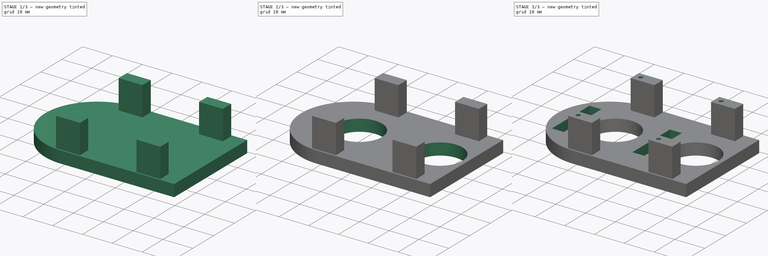
[diagram: build sequence overview — one tinted view per stage of 3, left to right]
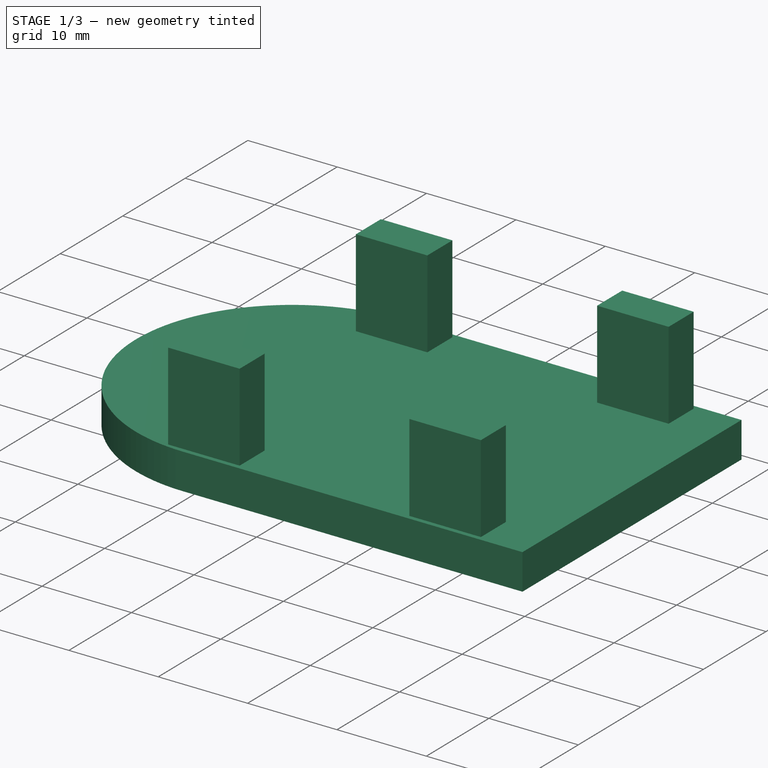
[diagram: stage 1 of 3 — iso view after this stage's code; geometry added in this stage tinted green]
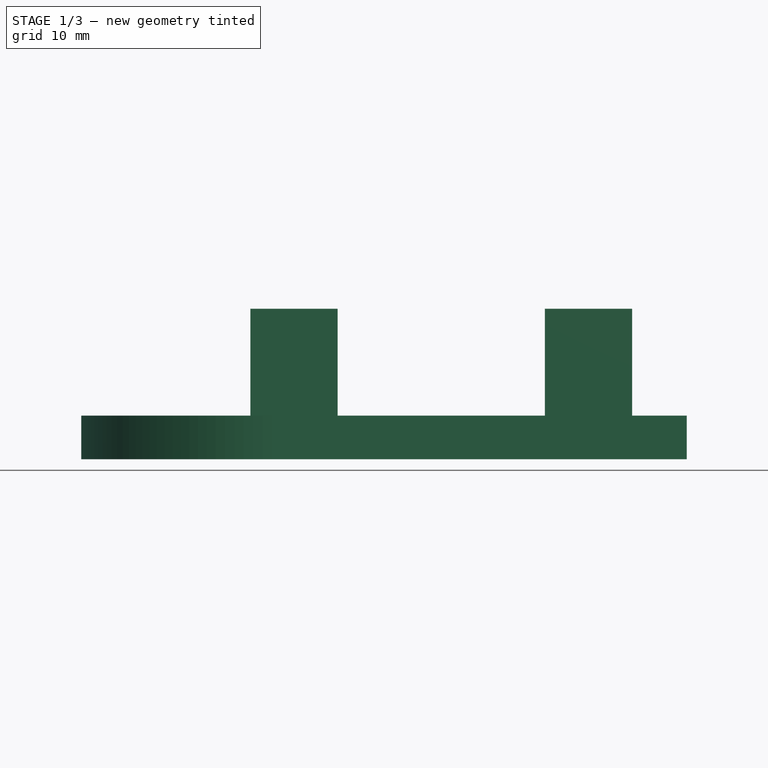
[diagram: stage 1 of 3 — front view after this stage's code; geometry added in this stage tinted green]
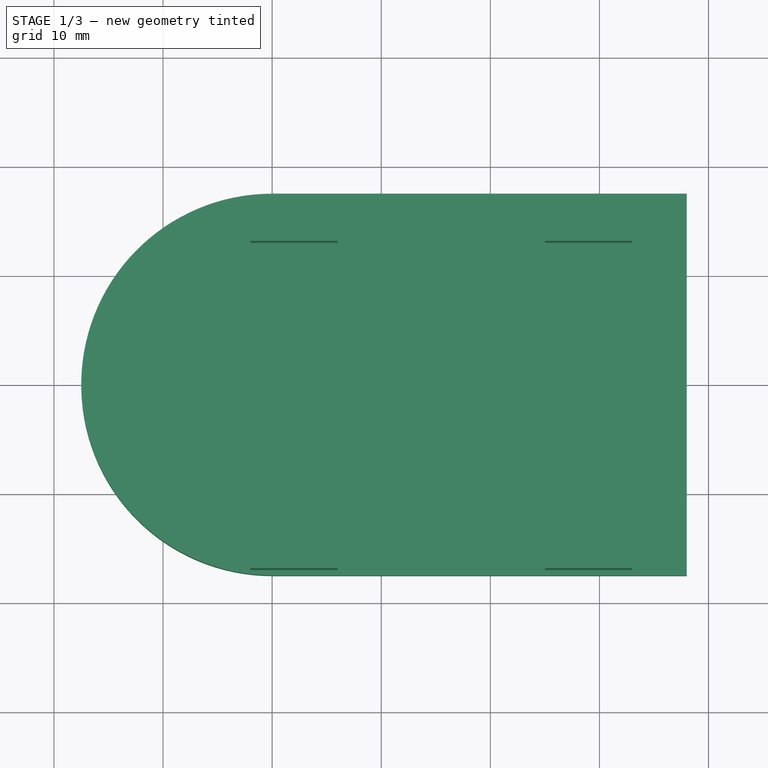
[diagram: stage 1 of 3 — top view after this stage's code; geometry added in this stage tinted green]
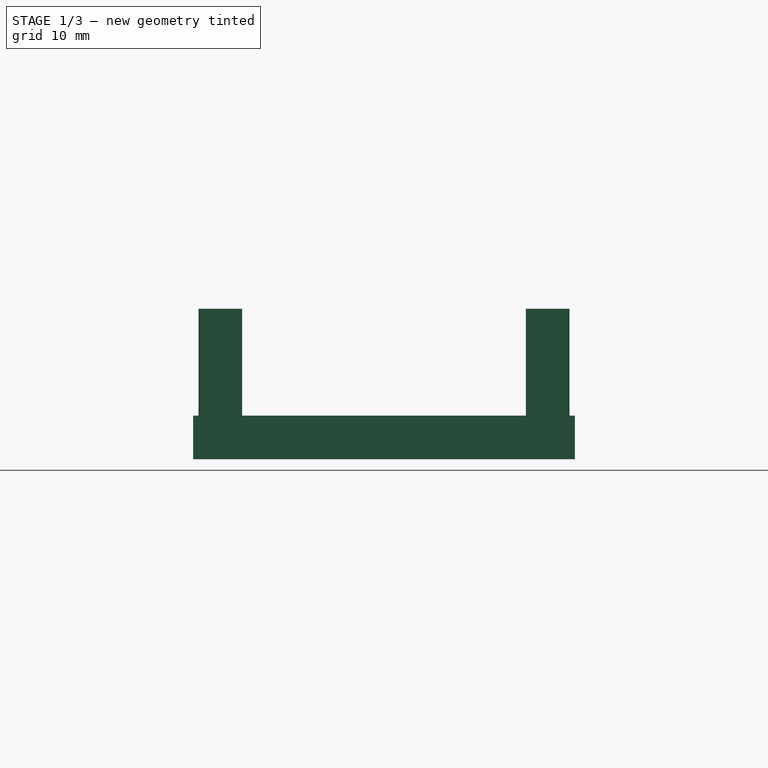
[diagram: stage 1 of 3 — right view after this stage's code; geometry added in this stage tinted green]
FCSTD DOCUMENT  (FreeCAD 0.15R3878 (Git))
Label: ircamera-casing
License: CC-BY 3.0
LicenseURL: http://creativecommons.org/licenses/by/3.0/
objects: Sketcher::SketchObject×5, PartDesign::Pocket×3, PartDesign::Pad×2, App::MeasureDistance×2
note: 15 computed .brp shape members not serialized (recipe doc carries the construction recipe); baked Part::Feature solids carry a one-line shape summary decoded from their .brp

FEATURE [Sketcher::SketchObject] Sketch  label="base"
  sketch-geometry (5):
    g0: ArcOfCircle CenterX=0 CenterY=0 CenterZ=0 NormalX=0 NormalY=0 NormalZ=1 Radius=17.5 StartAngle=1.5708 EndAngle=4.71239
    g1: LineSegment StartX=3.32267e-05 StartY=-17.5 StartZ=0 EndX=38 EndY=-17.5 EndZ=0
    g2: LineSegment StartX=-2.68055e-06 StartY=17.5 StartZ=0 EndX=38 EndY=17.5 EndZ=0
    g3: LineSegment StartX=38 StartY=17.5 StartZ=0 EndX=38 EndY=-17.5 EndZ=0
    g4: LineSegment [constr] StartX=0 StartY=0 StartZ=0 EndX=-17.5 EndY=0 EndZ=0
  constraints (15):
    c: Tangent(g0,g1)
    c: Tangent(g0,g2)
    c: Coincident(g0,g2)
    c: Coincident(g0,g1)
    c: Horizontal(g1)
    c: Coincident(g0,g-1)
    c: DistanceY(g0,g0) = 35
    c: Vertical(g3)
    c: DistanceX(g-1,g1) = 38
    c: PointOnObject(g4,g0)
    c: Horizontal(g4)
    c: Coincident(g4,g-1)
    c: DistanceX(g4) = -17.5
    c: Coincident(g3,g1)
    c: Coincident(g3,g2)
FEATURE [PartDesign::Pad] Pad
  Length = 4
  Length2 = 100
  Sketch = -> Sketch
  Type = 0
FEATURE [Sketcher::SketchObject] Sketch001  label="mount-offsets"
  Placement = pos=(0,0,4) rot=(0,0,1;0rad)
  Support = -> Pad [Face6]
  sketch-geometry (19):
    g0: LineSegment StartX=-2 StartY=17 StartZ=0 EndX=-2 EndY=13 EndZ=0
    g1: LineSegment StartX=-2 StartY=13 StartZ=0 EndX=6 EndY=13 EndZ=0
    g2: LineSegment StartX=6 StartY=13 StartZ=0 EndX=6 EndY=17 EndZ=0
    g3: LineSegment StartX=-2 StartY=-13 StartZ=0 EndX=6 EndY=-13 EndZ=0
    g4: LineSegment StartX=6 StartY=-13 StartZ=0 EndX=6 EndY=-17 EndZ=0
    g5: LineSegment StartX=-2 StartY=-17 StartZ=0 EndX=-2 EndY=-13 EndZ=0
    g6: LineSegment StartX=25 StartY=17 StartZ=0 EndX=33 EndY=17 EndZ=0
    g7: LineSegment StartX=33 StartY=17 StartZ=0 EndX=33 EndY=13 EndZ=0
    g8: LineSegment StartX=33 StartY=13 StartZ=0 EndX=25 EndY=13 EndZ=0
    g9: LineSegment StartX=25 StartY=13 StartZ=0 EndX=25 EndY=17 EndZ=0
    g10: LineSegment StartX=25 StartY=-13 StartZ=0 EndX=33 EndY=-13 EndZ=0
    g11: LineSegment StartX=33 StartY=-13 StartZ=0 EndX=33 EndY=-17 EndZ=0
    g12: LineSegment StartX=25 StartY=-17 StartZ=0 EndX=25 EndY=-13 EndZ=0
    g13: LineSegment StartX=-2 StartY=17 StartZ=0 EndX=6 EndY=17 EndZ=0
    g14: LineSegment [constr] StartX=-2 StartY=17 StartZ=0 EndX=25 EndY=17 EndZ=0
    g15: LineSegment StartX=33 StartY=-17 StartZ=0 EndX=25 EndY=-17 EndZ=0
    g16: LineSegment StartX=6 StartY=-17 StartZ=0 EndX=-2 EndY=-17 EndZ=0
    g17: LineSegment [constr] StartX=25 StartY=-17 StartZ=0 EndX=-2 EndY=-17 EndZ=0
    g18: LineSegment [constr] StartX=33 StartY=-17 StartZ=0 EndX=33 EndY=13 EndZ=0
  constraints (54):
    c: Coincident(g0,g1)
    c: Coincident(g1,g2)
    c: Horizontal(g1)
    c: Vertical(g0)
    c: Vertical(g2)
    c: Coincident(g3,g4)
    c: Coincident(g5,g3)
    c: Horizontal(g3)
    c: Vertical(g4)
    c: Vertical(g5)
    c: Coincident(g6,g7)
    c: Coincident(g7,g8)
    c: Coincident(g8,g9)
    c: Coincident(g9,g6)
    c: Horizontal(g6)
    c: Horizontal(g8)
    c: Vertical(g7)
    c: Vertical(g9)
    c: Coincident(g10,g11)
    c: Coincident(g12,g10)
    c: Horizontal(g10)
    c: Vertical(g11)
    c: Vertical(g12)
    c: Coincident(g13,g0)
    c: Coincident(g13,g2)
    c: Horizontal(g13)
    c: Coincident(g14,g0)
    c: Coincident(g14,g6)
    c: Horizontal(g14)
    c: Coincident(g15,g11)
    c: Coincident(g15,g12)
    c: Horizontal(g15)
    c: Coincident(g16,g4)
    c: Coincident(g16,g5)
    c: Horizontal(g16)
    c: Coincident(g17,g5)
    c: Horizontal(g17)
    c: Coincident(g17,g12)
    c: Equal(g0,g5)
    c: Equal(g5,g9)
    c: Equal(g9,g12)
    c: DistanceY(g5) = 4
    c: DistanceX(g17) = -27
    c: Coincident(g18,g11)
    c: Coincident(g18,g7)
    c: Vertical(g18)
    c: DistanceY(g18) = 30
    c: Equal(g1,g3)
    c: Equal(g3,g10)
    c: Equal(g10,g8)
    c: Equal(g14,g17)
    c: DistanceX(g3) = 8
    c: DistanceX(g-1,g0) = -2
    c: DistanceY(g-1,g0) = 13
FEATURE [PartDesign::Pad] Pad001
  Length = 9.8
  Length2 = 100
  Sketch = -> Sketch001
  Type = 0
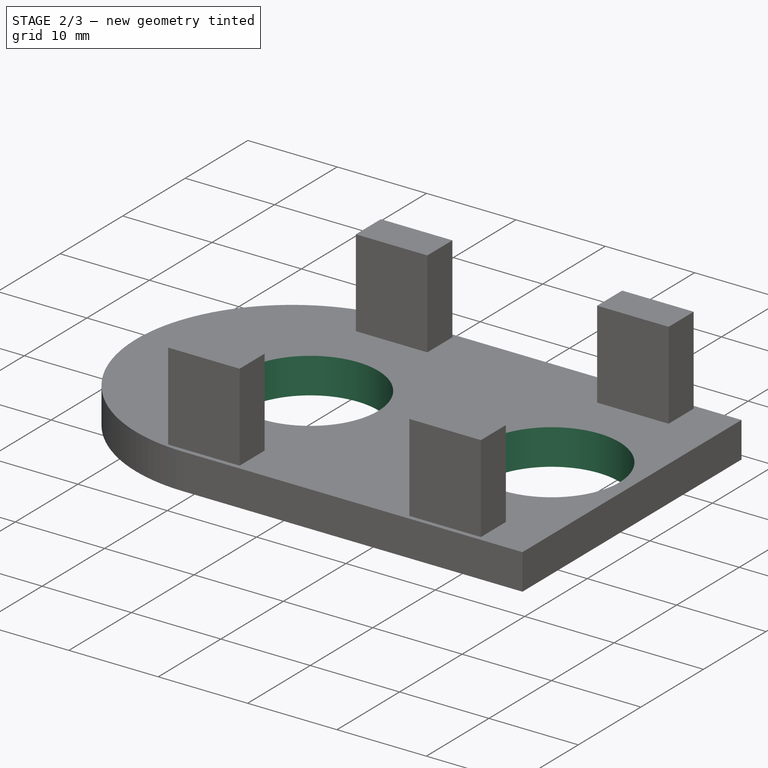
[diagram: stage 2 of 3 — iso view after this stage's code; geometry added in this stage tinted green]
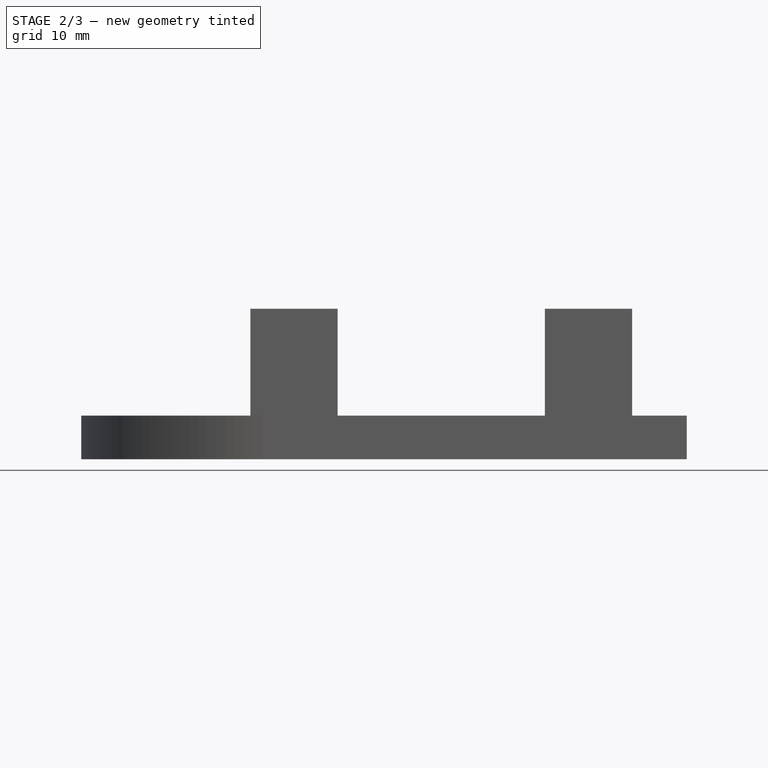
[diagram: stage 2 of 3 — front view after this stage's code; geometry added in this stage tinted green]
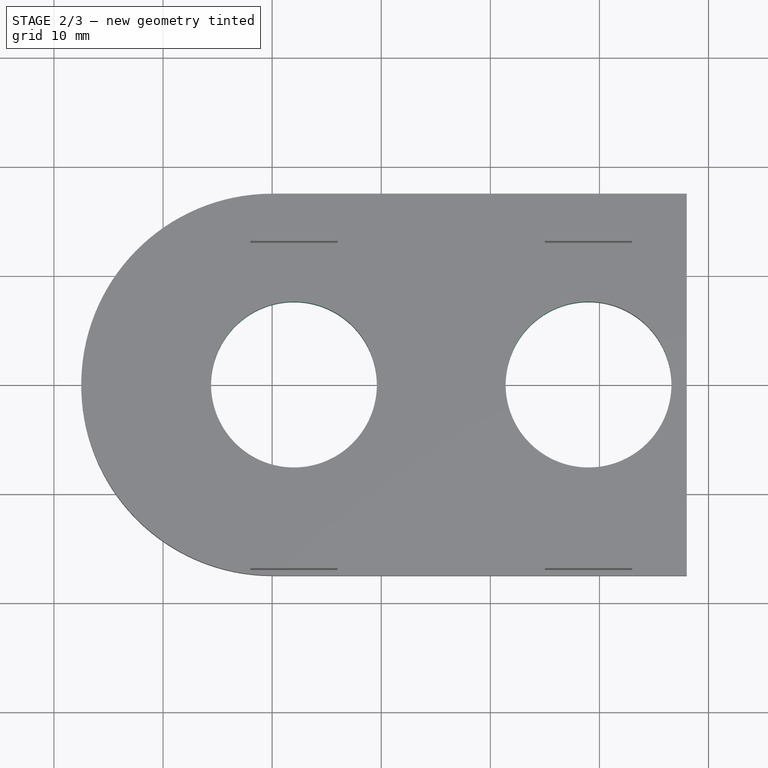
[diagram: stage 2 of 3 — top view after this stage's code; geometry added in this stage tinted green]
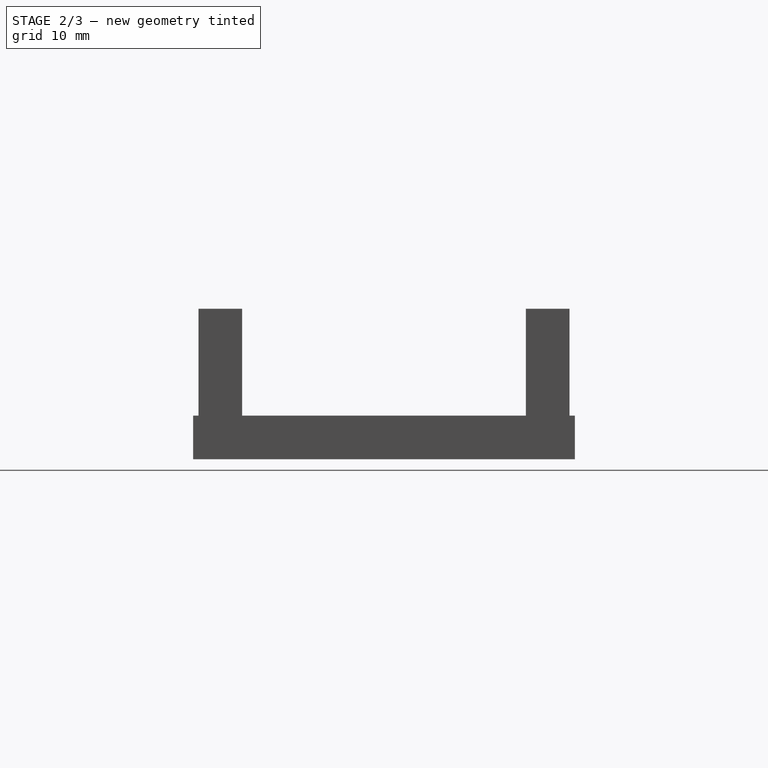
[diagram: stage 2 of 3 — right view after this stage's code; geometry added in this stage tinted green]
FEATURE [Sketcher::SketchObject] Sketch002  label="holes-lensthreads"
  Placement = pos=(0,0,4) rot=(0,0,1;0rad)
  Support = -> Pad001 [Face5]
  sketch-geometry (2):
    g0: Circle CenterX=2 CenterY=0 CenterZ=0 NormalX=0 NormalY=0 NormalZ=1 Radius=7.6
    g1: Circle CenterX=29 CenterY=0 CenterZ=0 NormalX=0 NormalY=0 NormalZ=1 Radius=7.6
  constraints (6):
    c: PointOnObject(g0,g-1)
    c: PointOnObject(g1,g-1)
    c: Radius(g1) = 7.6
    c: Equal(g1,g0)
    c: DistanceX(g0,g1) = 27
    c: DistanceX(g-1,g0) = 2
FEATURE [PartDesign::Pocket] Pocket
  Length = 5
  Sketch = -> Sketch002
  Type = 0
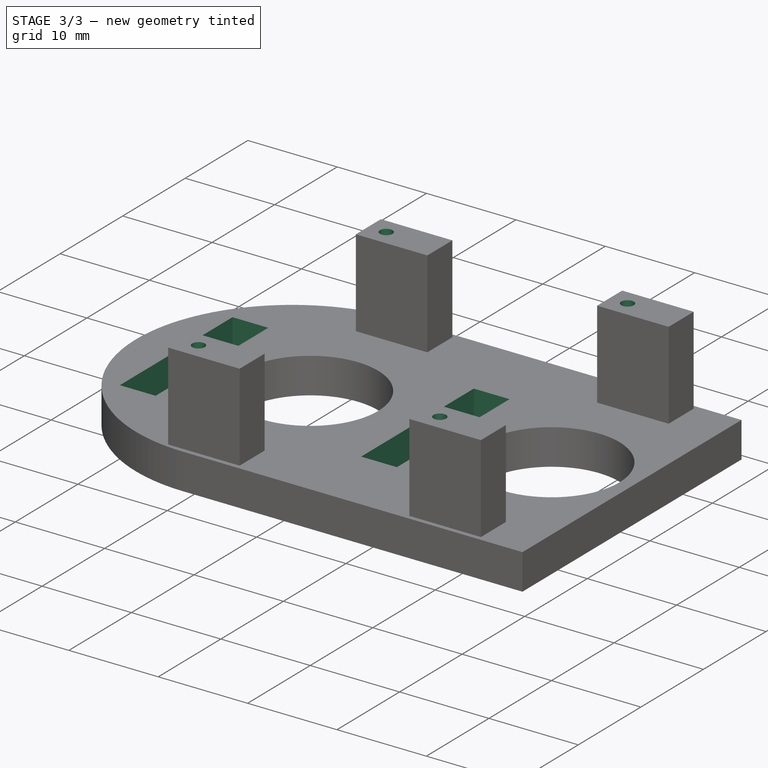
[diagram: stage 3 of 3 — iso view after this stage's code; geometry added in this stage tinted green]
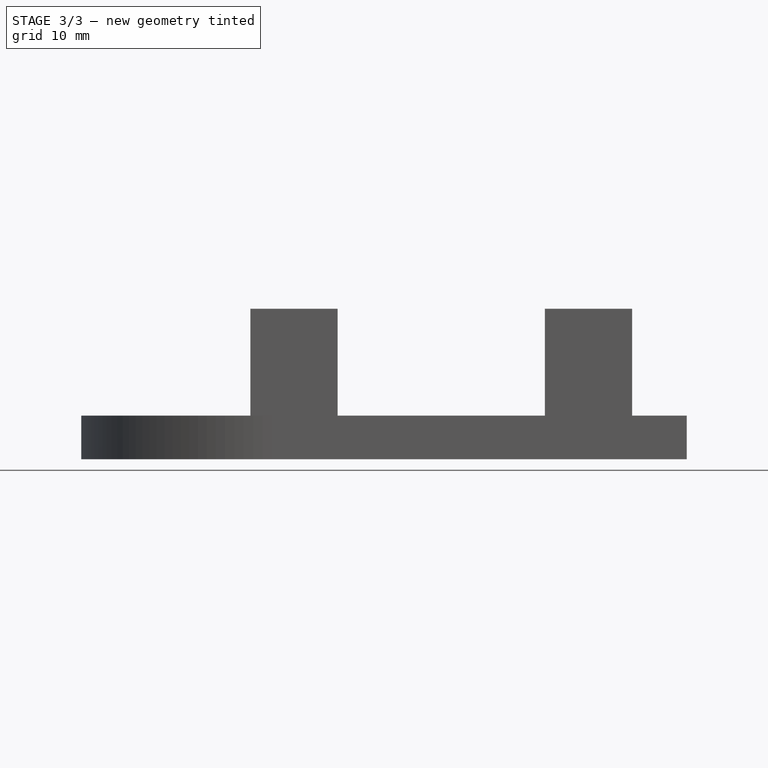
[diagram: stage 3 of 3 — front view after this stage's code; geometry added in this stage tinted green]
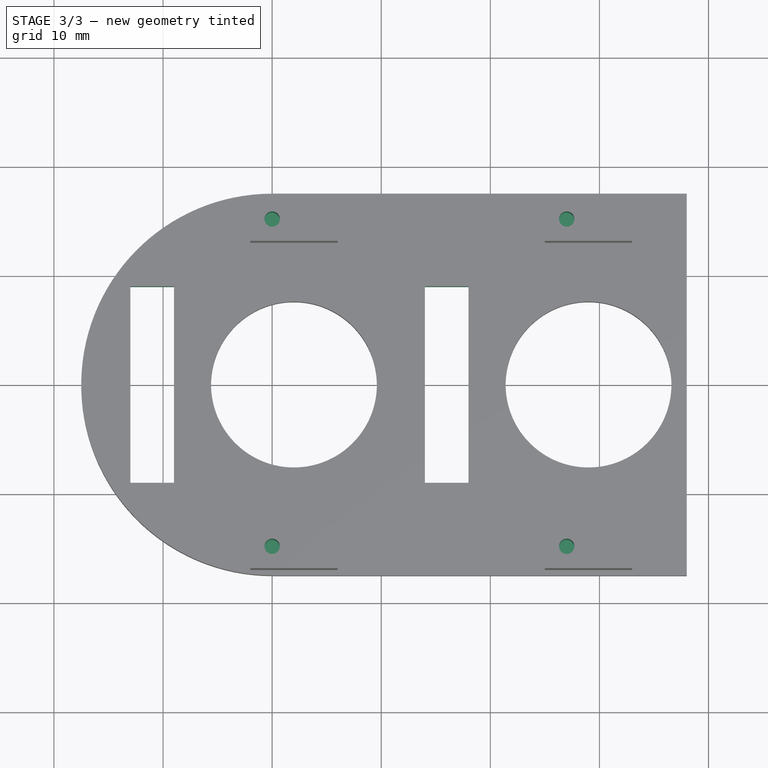
[diagram: stage 3 of 3 — top view after this stage's code; geometry added in this stage tinted green]
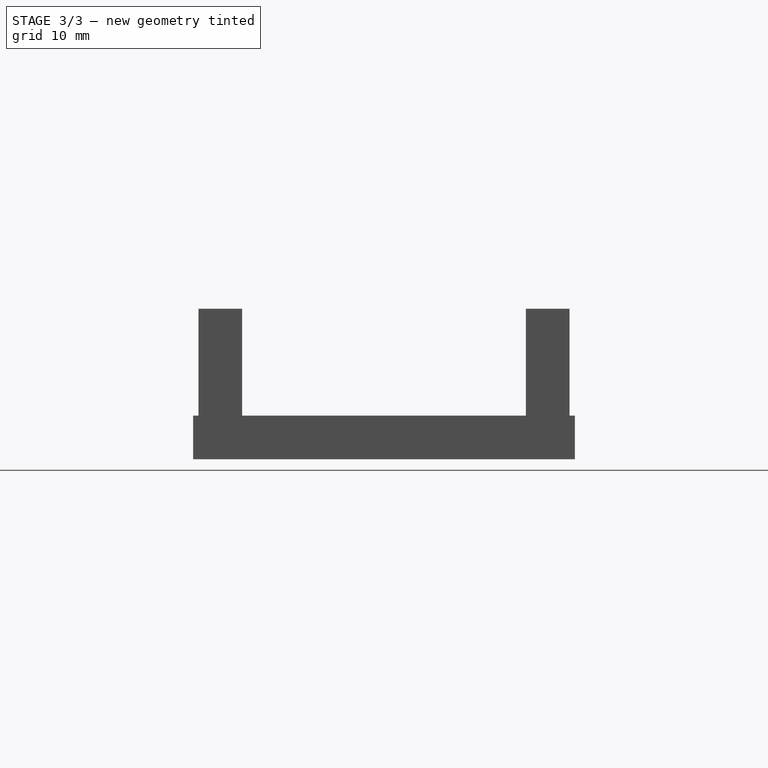
[diagram: stage 3 of 3 — right view after this stage's code; geometry added in this stage tinted green]
FEATURE [Sketcher::SketchObject] Sketch003  label="holes-screws"
  Placement = pos=(0,0,13.8) rot=(0,0,1;0rad)
  Support = -> Pocket [Face25]
  sketch-geometry (7):
    g0: Circle CenterX=0 CenterY=15 CenterZ=0 NormalX=0 NormalY=0 NormalZ=1 Radius=0.7
    g1: Circle CenterX=27 CenterY=15 CenterZ=0 NormalX=0 NormalY=0 NormalZ=1 Radius=0.7
    g2: Circle CenterX=27 CenterY=-15 CenterZ=0 NormalX=0 NormalY=0 NormalZ=1 Radius=0.7
    g3: Circle CenterX=0 CenterY=-15 CenterZ=0 NormalX=0 NormalY=0 NormalZ=1 Radius=0.7
    g4: LineSegment [constr] StartX=0 StartY=15 StartZ=0 EndX=27 EndY=15 EndZ=0
    g5: LineSegment [constr] StartX=0 StartY=-15 StartZ=0 EndX=27 EndY=-15 EndZ=0
    g6: LineSegment [constr] StartX=27 StartY=15 StartZ=0 EndX=27 EndY=-15 EndZ=0
  constraints (18):
    c: Radius(g3) = 0.7
    c: Equal(g3,g0)
    c: Equal(g3,g1)
    c: Equal(g3,g2)
    c: Coincident(g4,g0)
    c: Coincident(g4,g1)
    c: Horizontal(g4)
    c: Coincident(g5,g3)
    c: Coincident(g5,g2)
    c: Horizontal(g5)
    c: Equal(g4,g5)
    c: Coincident(g6,g1)
    c: Coincident(g6,g2)
    c: Vertical(g6)
    c: DistanceY(g6) = -30
    c: DistanceX(g5) = 27
    c: DistanceX(g-1,g0) = 0
    c: DistanceY(g-1,g0) = 15
FEATURE [PartDesign::Pocket] Pocket001
  Length = 6
  Sketch = -> Sketch003
  Type = 0
FEATURE [App::MeasureDistance] Distance  label="Distance: 26.000"
  Distance = 26
  P1 = (-1.90194,13,14)
  P2 = (-1.94541,-13,14)
FEATURE [Sketcher::SketchObject] Sketch004
  Placement = pos=(0,0,4) rot=(0,0,1;0rad)
  Support = -> Pocket001 [Face5]
  sketch-geometry (10):
    g0: LineSegment StartX=-13 StartY=9 StartZ=0 EndX=-9 EndY=9 EndZ=0
    g1: LineSegment StartX=-9 StartY=9 StartZ=0 EndX=-9 EndY=-9 EndZ=0
    g2: LineSegment StartX=-9 StartY=-9 StartZ=0 EndX=-13 EndY=-9 EndZ=0
    g3: LineSegment StartX=-13 StartY=-9 StartZ=0 EndX=-13 EndY=9 EndZ=0
    g4: LineSegment StartX=18 StartY=9 StartZ=0 EndX=14 EndY=9 EndZ=0
    g5: LineSegment StartX=14 StartY=9 StartZ=0 EndX=14 EndY=-9 EndZ=0
    g6: LineSegment StartX=14 StartY=-9 StartZ=0 EndX=18 EndY=-9 EndZ=0
    g7: LineSegment StartX=18 StartY=-9 StartZ=0 EndX=18 EndY=9 EndZ=0
    g8: LineSegment [constr] StartX=-13 StartY=-9 StartZ=0 EndX=14 EndY=-9 EndZ=0
    g9: LineSegment [constr] StartX=0 StartY=0 StartZ=0 EndX=-9 EndY=0 EndZ=0
  constraints (29):
    c: Coincident(g0,g1)
    c: Coincident(g1,g2)
    c: Coincident(g2,g3)
    c: Coincident(g3,g0)
    c: Horizontal(g0)
    c: Horizontal(g2)
    c: Vertical(g1)
    c: Vertical(g3)
    c: Coincident(g4,g5)
    c: Coincident(g5,g6)
    c: Coincident(g6,g7)
    c: Coincident(g7,g4)
    c: Horizontal(g4)
    c: Horizontal(g6)
    c: Vertical(g5)
    c: Vertical(g7)
    c: Equal(g6,g2)
    c: Equal(g5,g3)
    c: DistanceY(g5) = -18
    c: DistanceX(g6) = 4
    c: Coincident(g8,g2)
    c: Coincident(g8,g5)
    c: Horizontal(g8)
    c: DistanceX(g8) = 27
    c: DistanceX(g-1,g1) = -9
    c: Coincident(g9,g-1)
    c: PointOnObject(g9,g1)
    c: Horizontal(g9)
    c: Symmetric(g1,g1,g9)
FEATURE [PartDesign::Pocket] Pocket002
  Length = 5
  Sketch = -> Sketch004
  Type = 0
FEATURE [App::MeasureDistance] Distance001  label="Distance: 2.627"
  Distance = 2.62702
  P1 = (-8,-0.835419,4)
  P2 = (-5.45397,-1.48269,4)
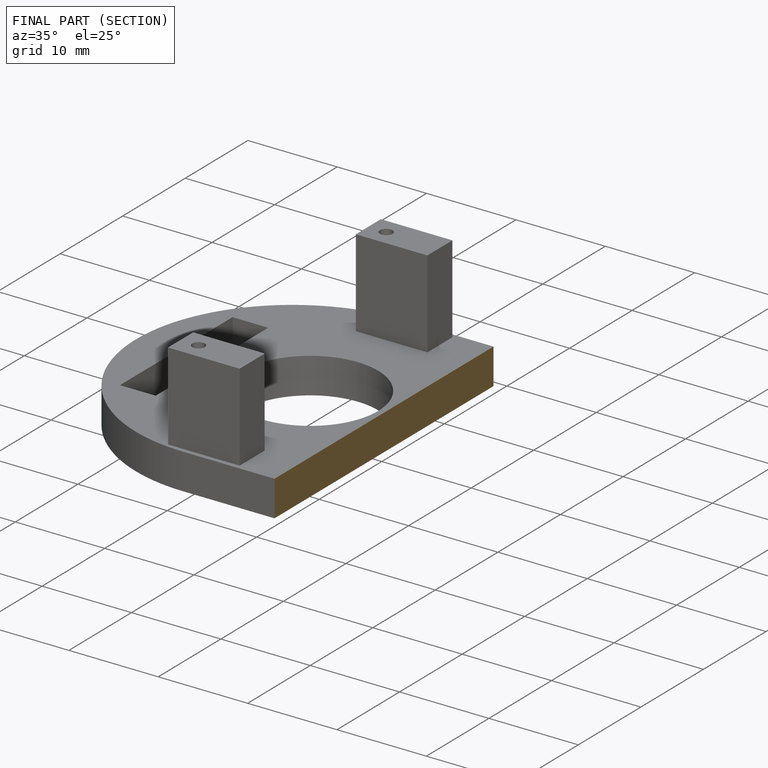
[diagram: finished part — half-section view (interior)]
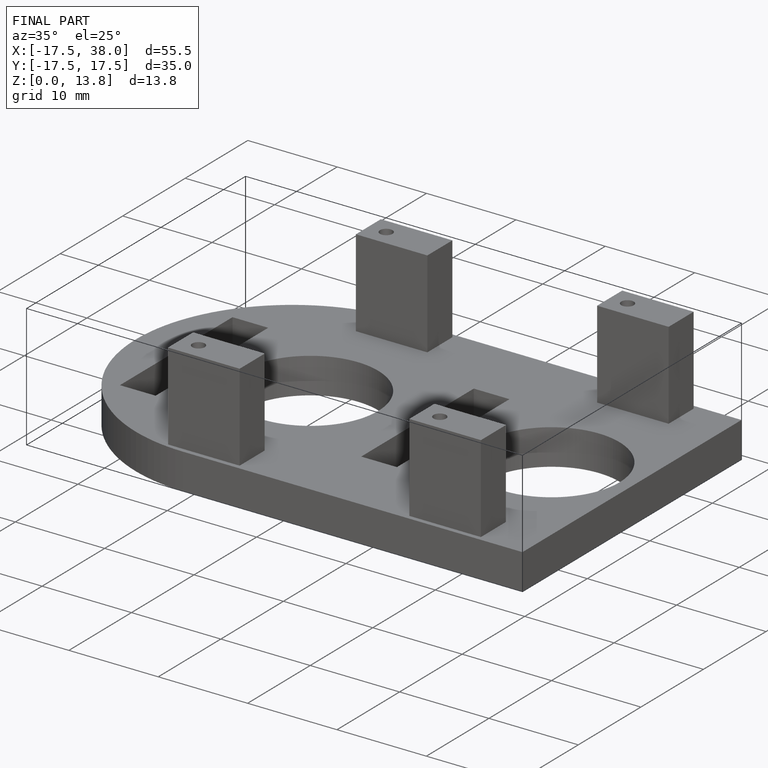
[diagram: finished part — iso view with bounding-box wireframe]
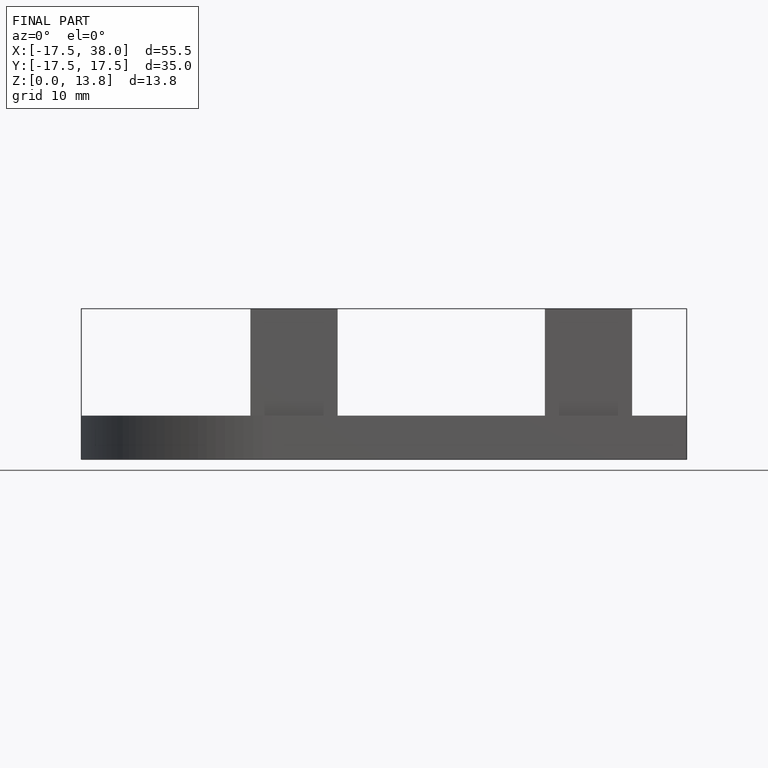
[diagram: finished part — front view with bounding-box wireframe]
